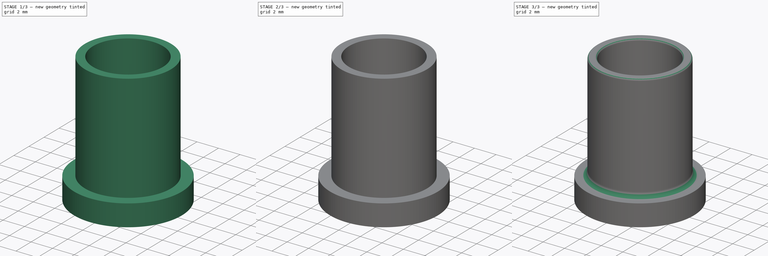
[diagram: build sequence overview — one tinted view per stage of 3, left to right]
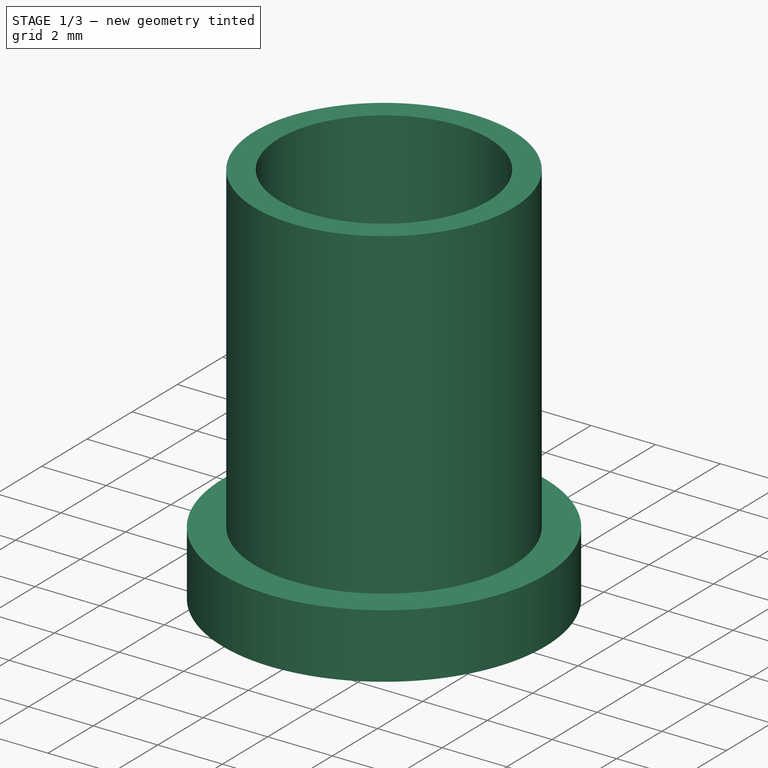
[diagram: stage 1 of 3 — iso view after this stage's code; geometry added in this stage tinted green]
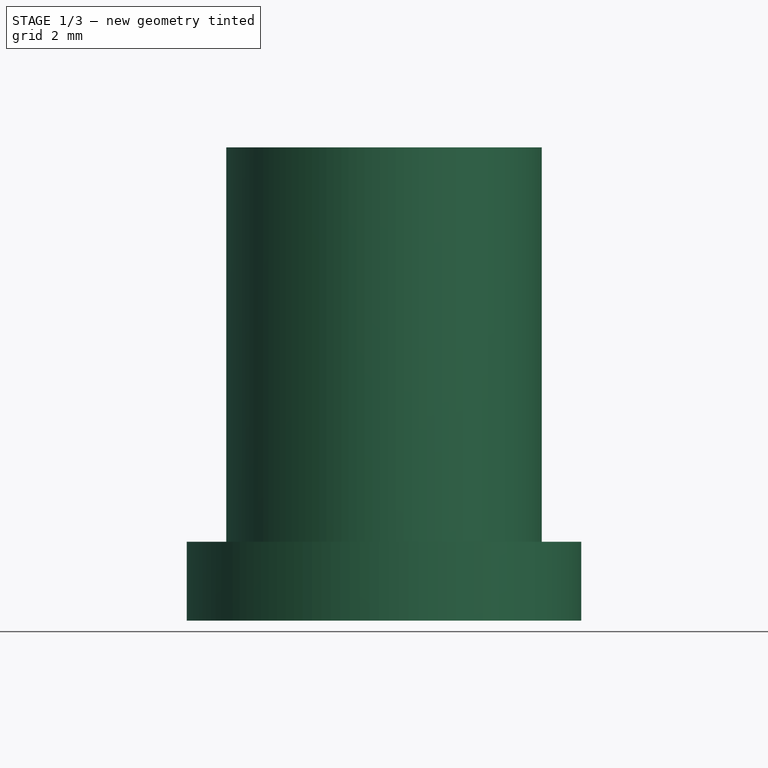
[diagram: stage 1 of 3 — front view after this stage's code; geometry added in this stage tinted green]
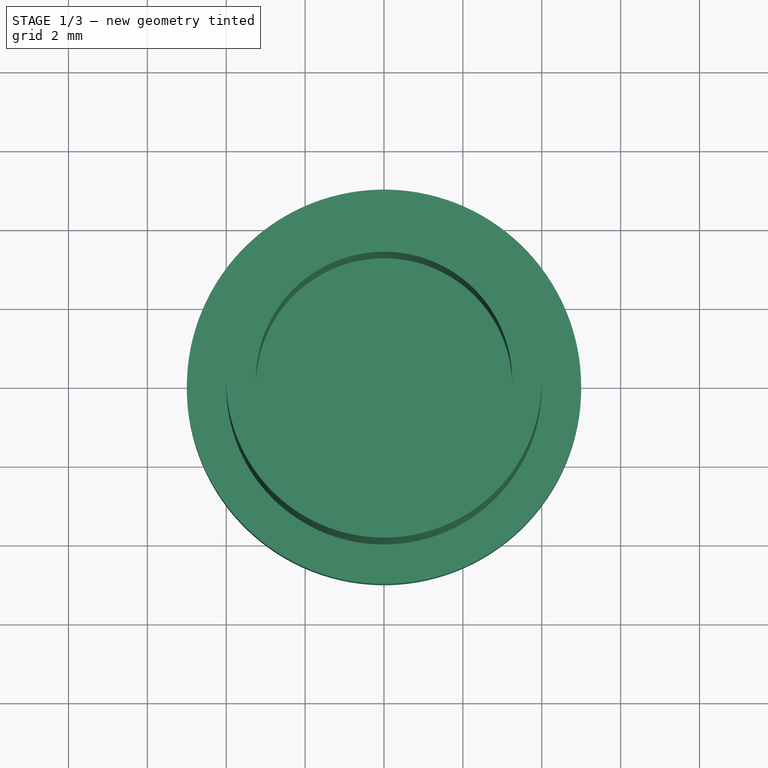
[diagram: stage 1 of 3 — top view after this stage's code; geometry added in this stage tinted green]
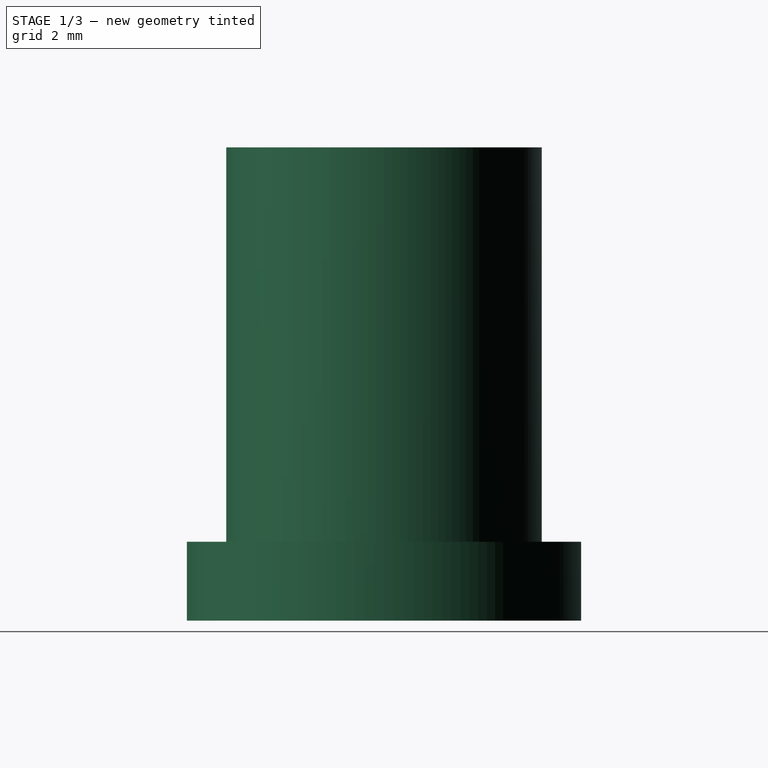
[diagram: stage 1 of 3 — right view after this stage's code; geometry added in this stage tinted green]
FCSTD DOCUMENT  (FreeCAD 0.21R33694 (Git))
Label: Bouchon led patte large tete ronde
License: All rights reserved
LicenseURL: http://en.wikipedia.org/wiki/All_rights_reserved
objects: Sketcher::SketchObject×4, PartDesign::Fillet×4, PartDesign::Pad×2, PartDesign::Pocket×2, PartDesign::Body×1
note: 21 computed .brp shape members not serialized (recipe doc carries the construction recipe); baked Part::Feature solids carry a one-line shape summary decoded from their .brp

FEATURE [Sketcher::SketchObject] Sketch
  FullyConstrained = false
  MapMode = 5
  Support = -> [XY_Plane]
  sketch-geometry (1):
    g0: Circle CenterX=0 CenterY=0 CenterZ=0 NormalX=0 NormalY=0 NormalZ=1 AngleXU=0 Radius=5
  constraints (1):
    c: Diameter(g0) = 10
FEATURE [PartDesign::Pad] Pad  label="fond"
  AllowMultiFace = false
  Direction = (0,0,1)
  Length = 2
  Length2 = 100
  Profile = -> Sketch
  Type = 0
FEATURE [Sketcher::SketchObject] Sketch001
  FullyConstrained = false
  MapMode = 5
  Placement = pos=(0,0,2) rot=(0,0,1;0rad)
  Support = -> [Pad]
  sketch-geometry (1):
    g0: Circle CenterX=0 CenterY=0 CenterZ=0 NormalX=0 NormalY=0 NormalZ=1 AngleXU=0 Radius=4
  constraints (1):
    c: Radius(g0) = 4
FEATURE [PartDesign::Pad] Pad001  label="logement dans tube"
  AllowMultiFace = false
  BaseFeature = -> Pad
  Direction = (0,0,1)
  Length = 10
  Length2 = 100
  Profile = -> Sketch001
  ReferenceAxis = -> Sketch001 [N_Axis]
  Type = 0
FEATURE [Sketcher::SketchObject] Sketch002
  FullyConstrained = false
  MapMode = 5
  Placement = pos=(0,0,12) rot=(0,0,1;0rad)
  Support = -> [Pad001]
  sketch-geometry (1):
    g0: Circle CenterX=0 CenterY=0 CenterZ=0 NormalX=0 NormalY=0 NormalZ=1 AngleXU=0 Radius=3.25
  constraints (1):
    c: Radius(g0) = 3.25
FEATURE [PartDesign::Pocket] Pocket  label="trou led"
  AllowMultiFace = false
  BaseFeature = -> Pad001
  Direction = (0,0,-1)
  Length = 9.5
  Length2 = 100
  Profile = -> Sketch002
  ReferenceAxis = -> Sketch002 [N_Axis]
  Type = 0
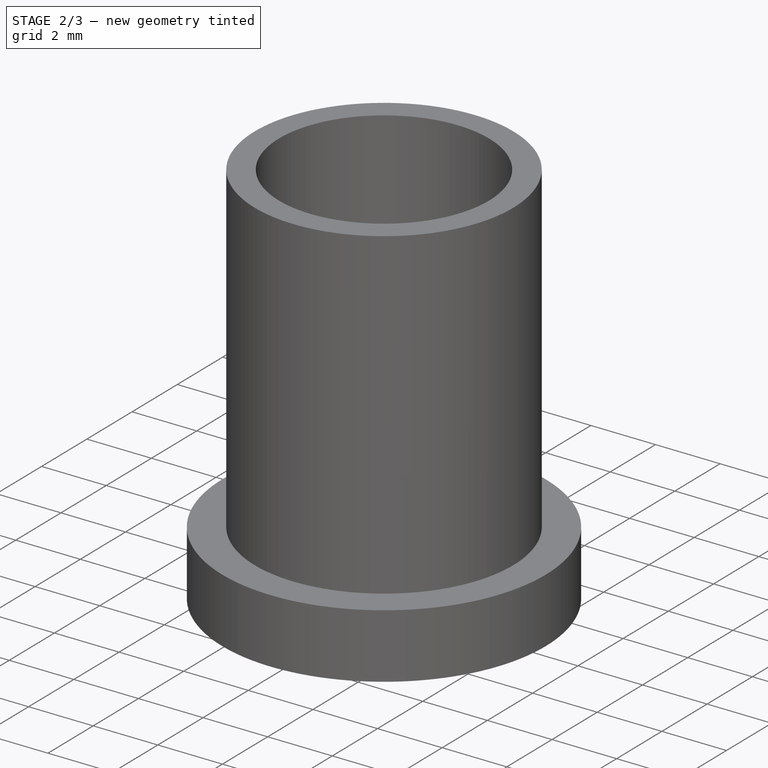
[diagram: stage 2 of 3 — iso view after this stage's code; geometry added in this stage tinted green]
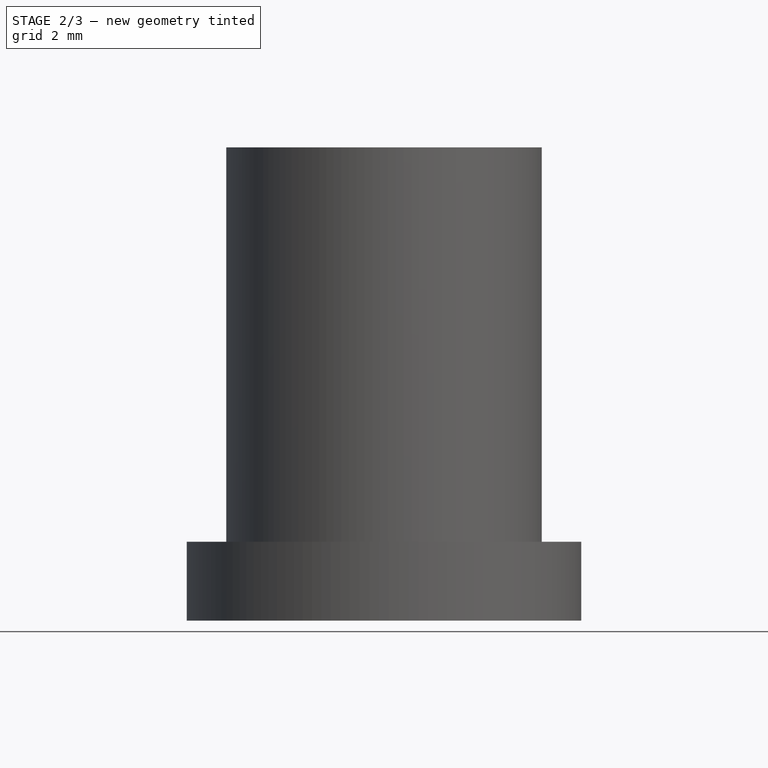
[diagram: stage 2 of 3 — front view after this stage's code; geometry added in this stage tinted green]
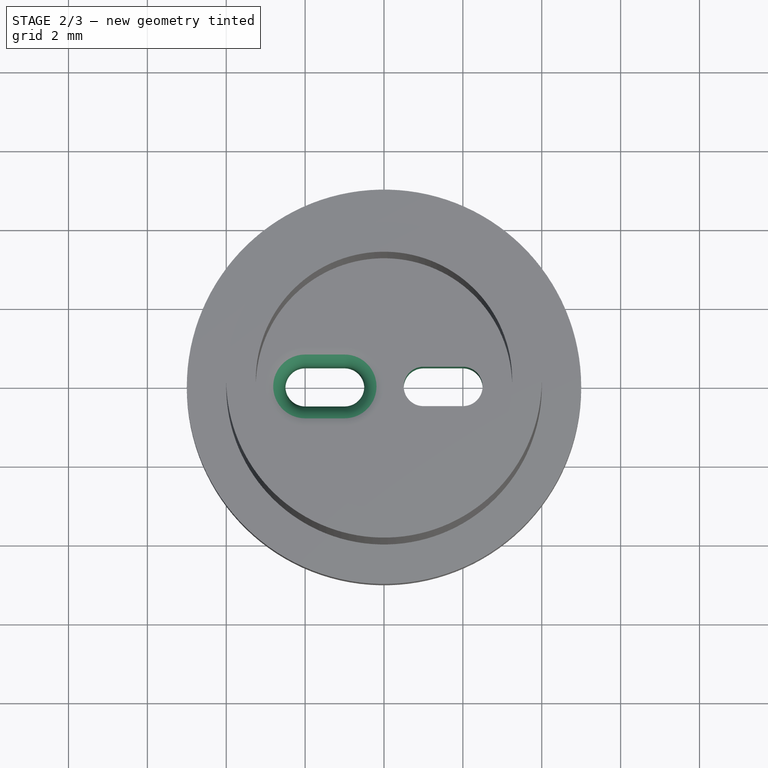
[diagram: stage 2 of 3 — top view after this stage's code; geometry added in this stage tinted green]
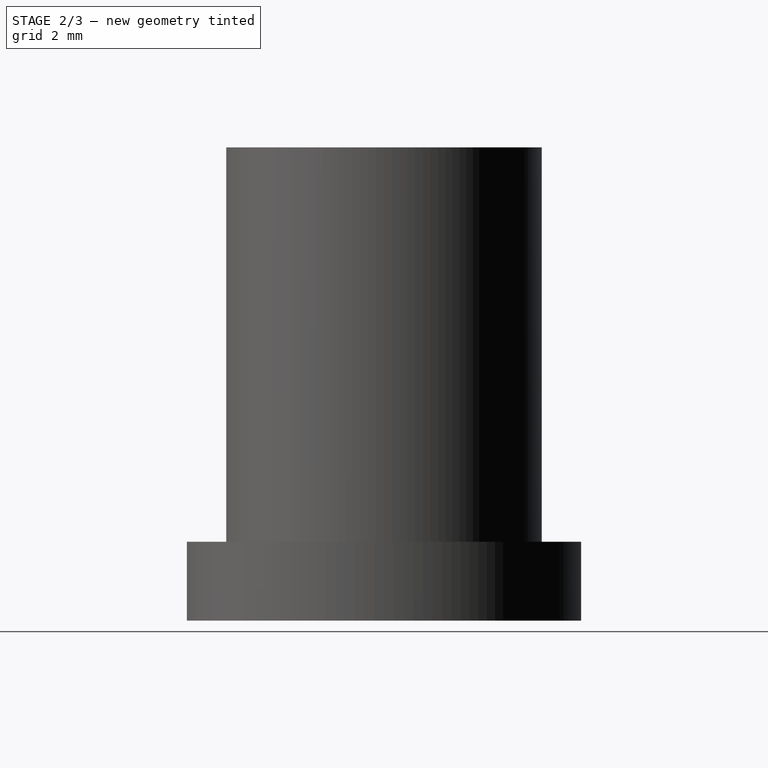
[diagram: stage 2 of 3 — right view after this stage's code; geometry added in this stage tinted green]
FEATURE [Sketcher::SketchObject] Sketch003
  FullyConstrained = true
  MapMode = 5
  Placement = pos=(0,0,2.5) rot=(0,0,1;0rad)
  Support = -> [Pocket]
  sketch-geometry (8):
    g0: ArcOfCircle CenterX=-2 CenterY=0 CenterZ=0 NormalX=0 NormalY=0 NormalZ=1 AngleXU=0 Radius=0.5 StartAngle=1.5708 EndAngle=4.71239
    g1: ArcOfCircle CenterX=-1 CenterY=0 CenterZ=0 NormalX=0 NormalY=0 NormalZ=1 AngleXU=0 Radius=0.5 StartAngle=4.71239 EndAngle=7.85398
    g2: LineSegment StartX=-2 StartY=-0.5 StartZ=0 EndX=-1 EndY=-0.5 EndZ=0
    g3: LineSegment StartX=-1 StartY=0.5 StartZ=0 EndX=-2 EndY=0.5 EndZ=0
    g4: ArcOfCircle CenterX=1 CenterY=0 CenterZ=0 NormalX=0 NormalY=0 NormalZ=1 AngleXU=0 Radius=0.5 StartAngle=1.5708 EndAngle=4.71239
    g5: ArcOfCircle CenterX=2 CenterY=1e-16 CenterZ=0 NormalX=0 NormalY=0 NormalZ=1 AngleXU=0 Radius=0.5 StartAngle=4.71239 EndAngle=7.85398
    g6: LineSegment StartX=1 StartY=-0.5 StartZ=0 EndX=2 EndY=-0.5 EndZ=0
    g7: LineSegment StartX=2 StartY=0.5 StartZ=0 EndX=1 EndY=0.5 EndZ=0
  constraints (20):
    c: Tangent(g0,g2) = -1.5708
    c: Tangent(g2,g1) = -1.5708
    c: Tangent(g1,g3) = -1.5708
    c: Tangent(g3,g0) = -1.5708
    c: Equal(g0,g1)
    c: Diameter(g0) = 1
    c: Distance(g0,g1) = 1
    c: Horizontal(g3)
    c: DistanceX(g1,g-1) = 1
    c: Tangent(g4,g6) = -1.5708
    c: Tangent(g6,g5) = -1.5708
    c: Tangent(g5,g7) = -1.5708
    c: Tangent(g7,g4) = -1.5708
    c: Equal(g4,g5)
    c: Horizontal(g7)
    c: DistanceX(g-1,g4) = 1
    c: DistanceX(g4,g5) = 1
    c: PointOnObject(g1,g-1)
    c: PointOnObject(g4,g-1)
    c: Diameter(g5) = 1
FEATURE [PartDesign::Pocket] Pocket001  label="trou pattes led"
  AllowMultiFace = false
  BaseFeature = -> Pocket
  Direction = (0,0,-1)
  Length = 5
  Length2 = 100
  Profile = -> Sketch003
  Type = 1
FEATURE [PartDesign::Fillet] Fillet
  Base = -> Pocket001 [Edge16,Edge18,Edge20,Edge13]
  BaseFeature = -> Pocket001
  Radius = 0.5
  Refine = true
  SupportTransform = false
  UseAllEdges = false
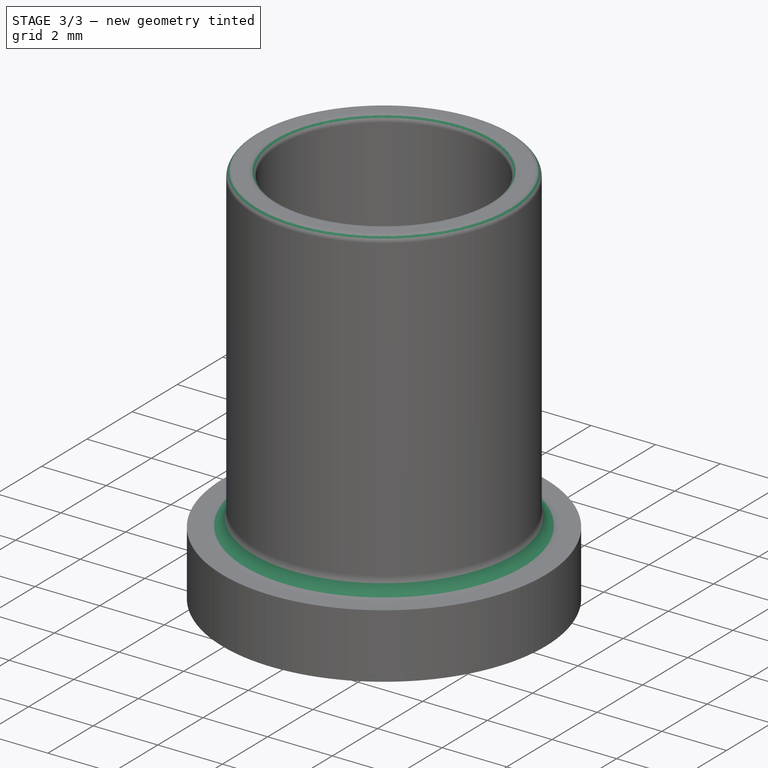
[diagram: stage 3 of 3 — iso view after this stage's code; geometry added in this stage tinted green]
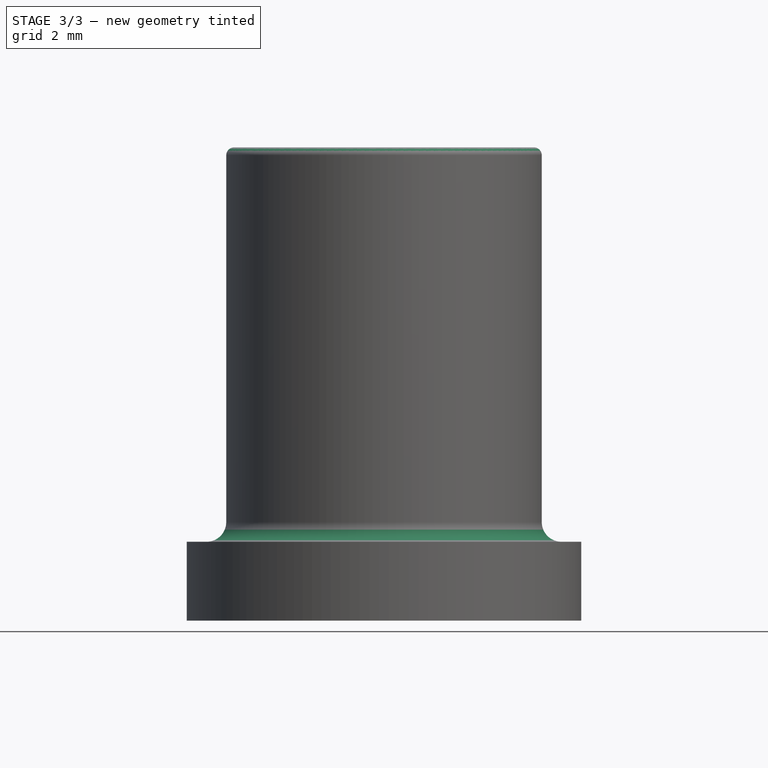
[diagram: stage 3 of 3 — front view after this stage's code; geometry added in this stage tinted green]
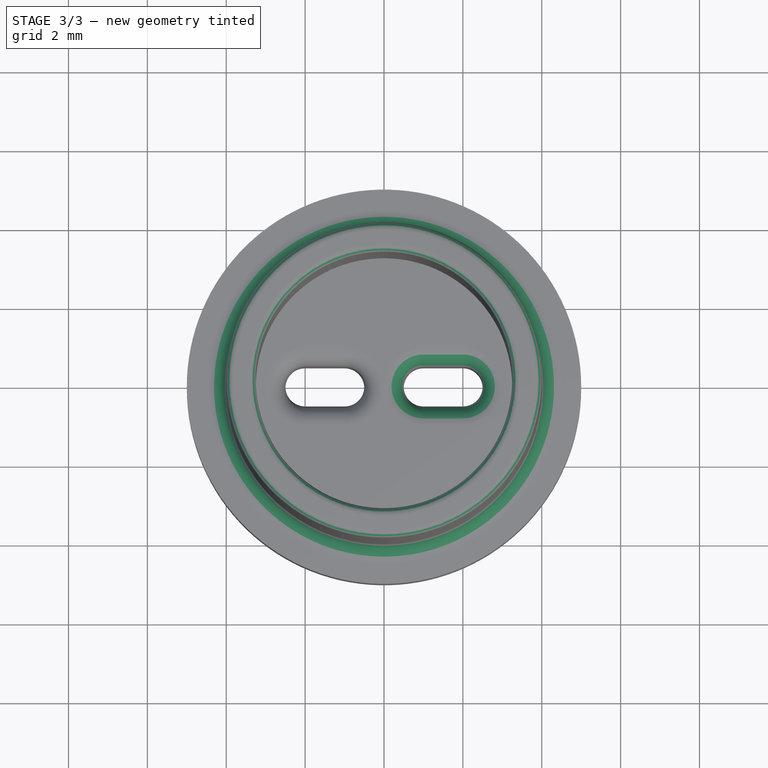
[diagram: stage 3 of 3 — top view after this stage's code; geometry added in this stage tinted green]
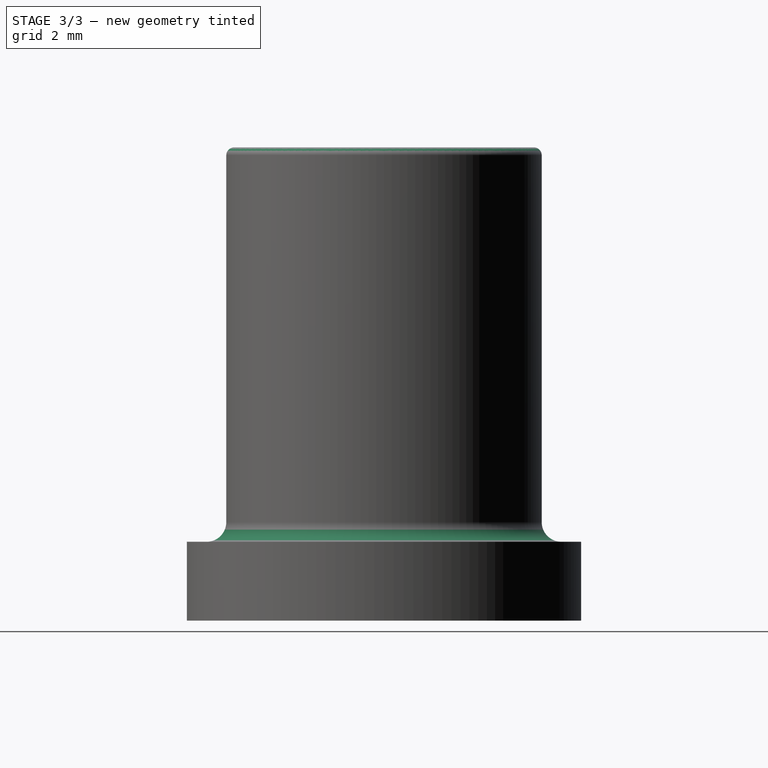
[diagram: stage 3 of 3 — right view after this stage's code; geometry added in this stage tinted green]
FEATURE [PartDesign::Fillet] Fillet001
  Base = -> Fillet [Edge29,Edge28,Edge27,Edge30]
  BaseFeature = -> Fillet
  Radius = 0.5
  Refine = true
  SupportTransform = false
  UseAllEdges = false
FEATURE [PartDesign::Fillet] Fillet002
  Base = -> Fillet001 [Edge49]
  BaseFeature = -> Fillet001
  Radius = 0.5
  Refine = true
  SupportTransform = false
  UseAllEdges = false
FEATURE [PartDesign::Fillet] Fillet003
  Base = -> Fillet002 [Face3]
  BaseFeature = -> Fillet002
  Radius = 0.2
  Refine = true
  SupportTransform = false
  UseAllEdges = false
FEATURE [PartDesign::Body] Body
  Group = -> [Sketch,Pad,Sketch001,Pad001,Sketch002,Pocket,Sketch003,Pocket001,Fillet,Fillet001,Fillet002,Fillet003]
  Origin = -> Origin
  Tip = -> Fillet003
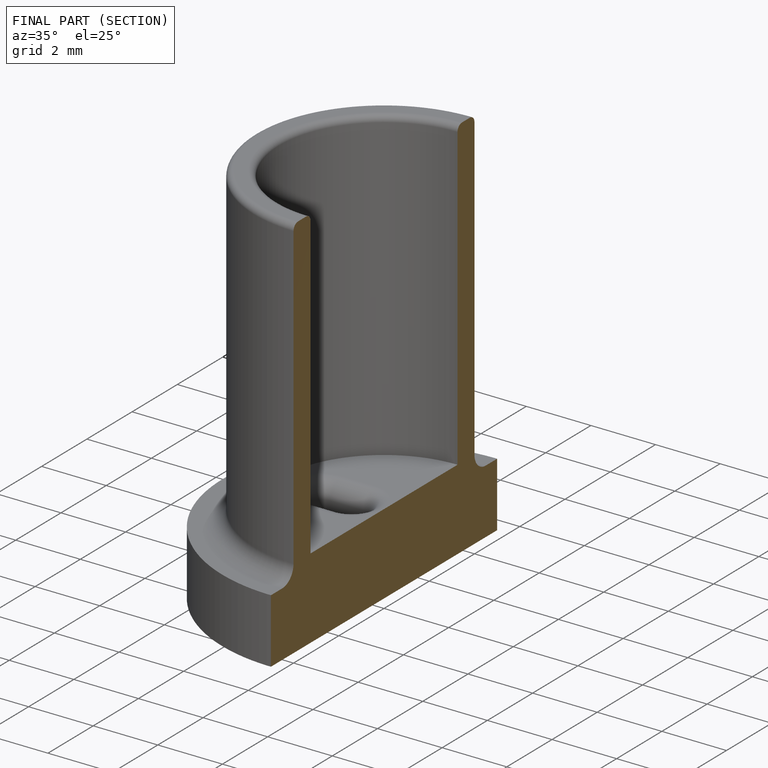
[diagram: finished part — half-section view (interior)]
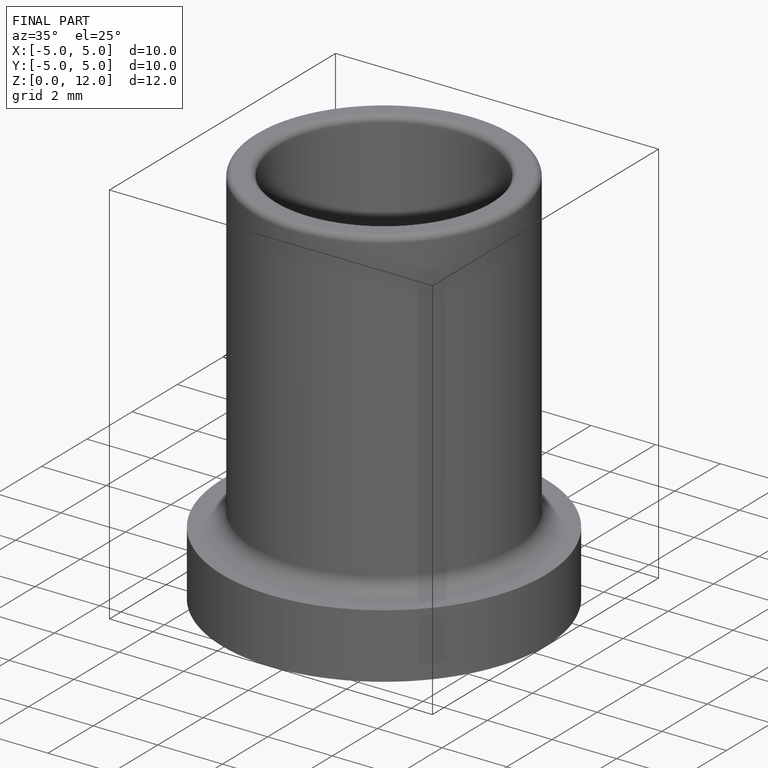
[diagram: finished part — iso view with bounding-box wireframe]
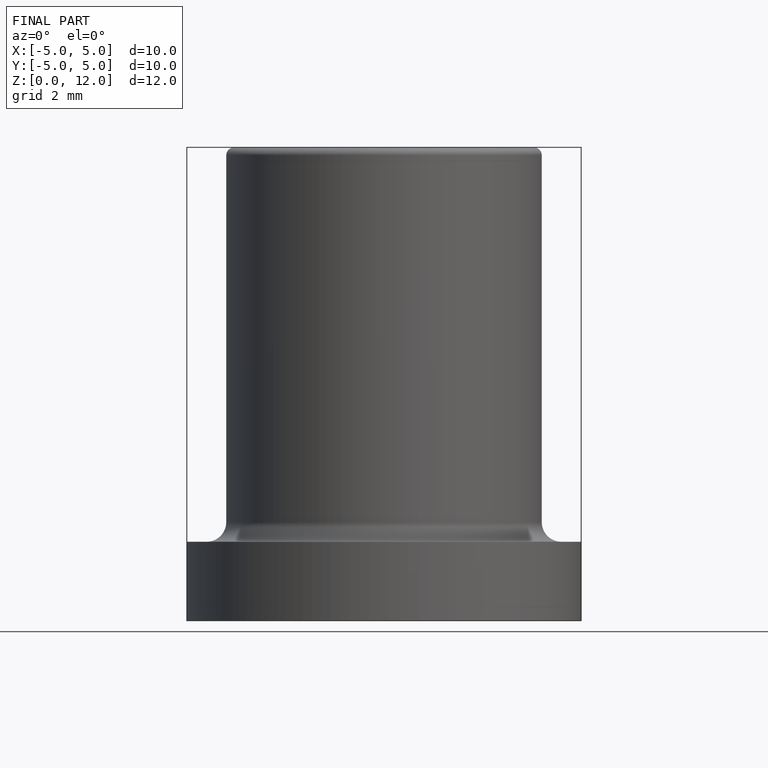
[diagram: finished part — front view with bounding-box wireframe]
